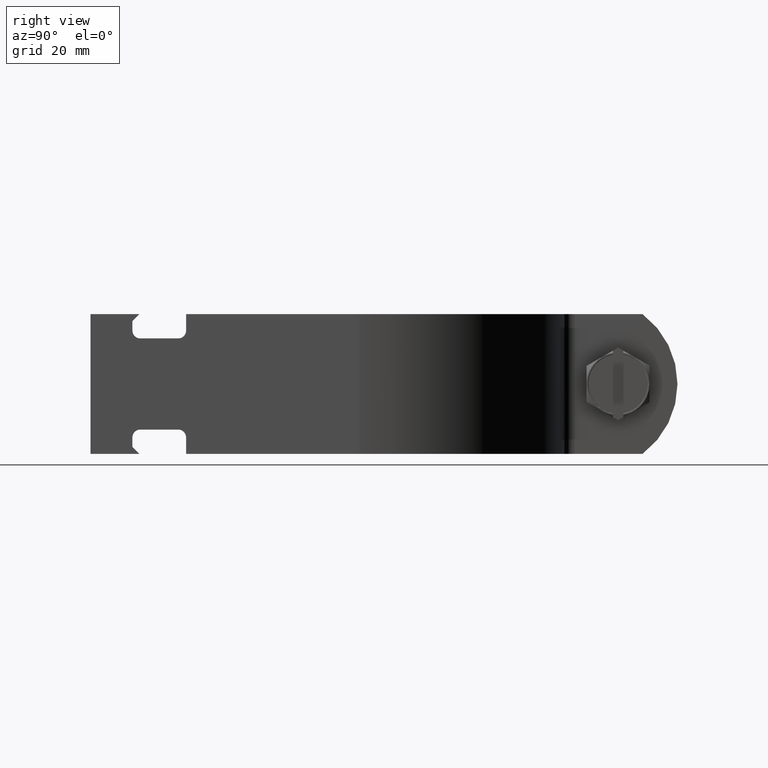
[diagram: clean part render]
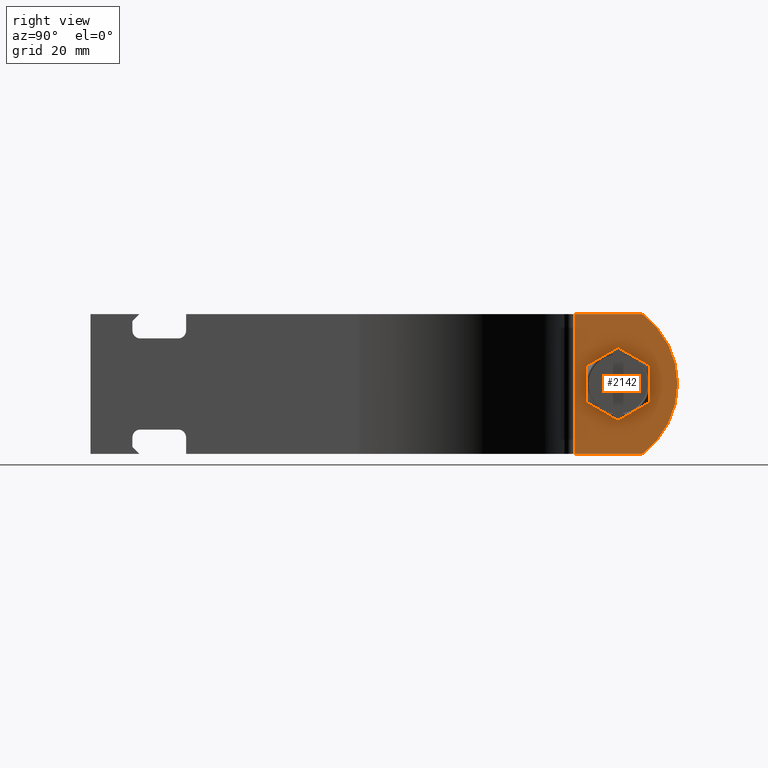
[diagram: same view with one face highlighted and labeled with its STEP entity id]
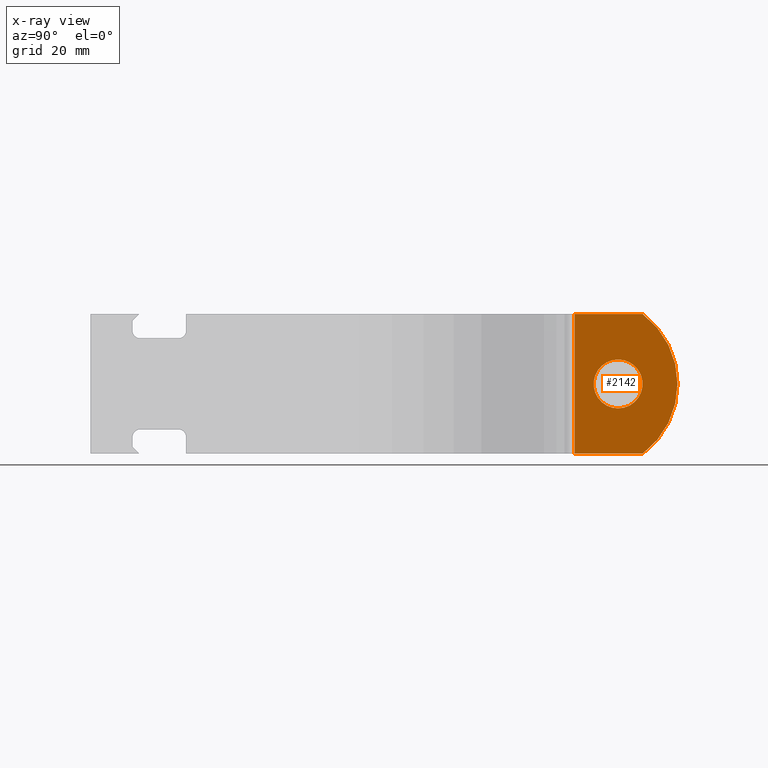
[diagram: x-ray of the same camera — body ghosted, the highlighted face saturated]
A machine part, right view. The second image highlights one B-rep face of the part: STEP entity #2142.
The next image is the same camera in x-ray: the body ghosted, the highlighted face saturated — about 0% of this face is hidden behind the body in this view.
In plain terms, the highlighted planar face has unit normal (-1, 0, 0).
Its self-contained STEP definition (entity closure, byte-faithful):
#33 = EDGE_LOOP ( 'NONE', ( #1793, #1423, #1156, #1931 ) ) ;
#100 = DIRECTION ( 'NONE',  ( -3.122111992759158457E-16, -1.000000000000000000, 0.000000000000000000 ) ) ;
#317 = CARTESIAN_POINT ( 'NONE',  ( 4.999999999999994671, 43.31533469450195639, -15.87500000000000000 ) ) ;
#392 = EDGE_CURVE ( 'NONE', #2931, #1579, #2480, .T. ) ;
#467 = EDGE_CURVE ( 'NONE', #2931, #2383, #2459, .T. ) ;
#469 = DIRECTION ( 'NONE',  ( -1.000000000000000000, 2.375905783659603498E-16, 0.000000000000000000 ) ) ;
#508 = FACE_OUTER_BOUND ( 'NONE', #33, .T. ) ;
#716 = CIRCLE ( 'NONE', #1928, 19.84374999999995737 ) ;
#721 = AXIS2_PLACEMENT_3D ( 'NONE', #1833, #982, #100 ) ;
#819 = ORIENTED_EDGE ( 'NONE', *, *, #2472, .T. ) ;
#914 = CARTESIAN_POINT ( 'NONE',  ( 4.999999999999993783, 41.12040011781588333, 15.87500000000000000 ) ) ;
#982 = DIRECTION ( 'NONE',  ( -1.000000000000000000, 2.375905783659603498E-16, 0.000000000000000000 ) ) ;
#1024 = AXIS2_PLACEMENT_3D ( 'NONE', #1910, #469, #1624 ) ;
#1125 = CARTESIAN_POINT ( 'NONE',  ( 4.999999999999994671, 43.31533469450195639, 15.87500000000000000 ) ) ;
#1156 = ORIENTED_EDGE ( 'NONE', *, *, #1933, .T. ) ;
#1183 = CARTESIAN_POINT ( 'NONE',  ( 4.999999999999997335, 58.73749999999996874, 15.87500000000000355 ) ) ;
#1197 = CIRCLE ( 'NONE', #721, 5.556249999999998579 ) ;
#1287 = CARTESIAN_POINT ( 'NONE',  ( 4.999999999999998224, 58.73749999999996874, -15.87500000000000000 ) ) ;
#1308 = CARTESIAN_POINT ( 'NONE',  ( 4.999999999999997335, 46.83125000000003979, 2.011351856718805931E-15 ) ) ;
#1378 = FACE_BOUND ( 'NONE', #2008, .T. ) ;
#1409 = VERTEX_POINT ( 'NONE', #3740 ) ;
#1423 = ORIENTED_EDGE ( 'NONE', *, *, #392, .T. ) ;
#1575 = CARTESIAN_POINT ( 'NONE',  ( 4.999999999999994671, 43.31533469450195639, -15.87500000000000000 ) ) ;
#1579 = VERTEX_POINT ( 'NONE', #317 ) ;
#1624 = DIRECTION ( 'NONE',  ( -3.122111992759158457E-16, -1.000000000000000000, 0.000000000000000000 ) ) ;
#1729 = VERTEX_POINT ( 'NONE', #3347 ) ;
#1793 = ORIENTED_EDGE ( 'NONE', *, *, #467, .F. ) ;
#1816 = EDGE_CURVE ( 'NONE', #2122, #2383, #716, .T. ) ;
#1833 = CARTESIAN_POINT ( 'NONE',  ( 4.999999999999997335, 53.18124999999997726, -9.720633968232098440E-16 ) ) ;
#1842 = DIRECTION ( 'NONE',  ( 2.375905783659603005E-16, 1.000000000000000000, 0.000000000000000000 ) ) ;
#1886 = VECTOR ( 'NONE', #1842, 1000.000000000000000 ) ;
#1910 = CARTESIAN_POINT ( 'NONE',  ( 4.999999999999997335, 53.18124999999997726, -9.720633968232098440E-16 ) ) ;
#1928 = AXIS2_PLACEMENT_3D ( 'NONE', #1308, #3133, #2496 ) ;
#1931 = ORIENTED_EDGE ( 'NONE', *, *, #1816, .T. ) ;
#1933 = EDGE_CURVE ( 'NONE', #1579, #2122, #3534, .T. ) ;
#1992 = DIRECTION ( 'NONE',  ( 2.375905783659603005E-16, 1.000000000000000000, 0.000000000000000000 ) ) ;
#2008 = EDGE_LOOP ( 'NONE', ( #819, #3410 ) ) ;
#2065 = VECTOR ( 'NONE', #3358, 1000.000000000000000 ) ;
#2122 = VERTEX_POINT ( 'NONE', #1287 ) ;
#2142 = ADVANCED_FACE ( 'NONE', ( #1378, #508 ), #3709, .F. ) ;
#2160 = DIRECTION ( 'NONE',  ( -1.000000000000000000, 2.375905783659603498E-16, 0.000000000000000000 ) ) ;
#2173 = CIRCLE ( 'NONE', #1024, 5.556249999999998579 ) ;
#2237 = EDGE_CURVE ( 'NONE', #1729, #1409, #2173, .T. ) ;
#2280 = CARTESIAN_POINT ( 'NONE',  ( 4.999999999999993783, 41.12040011781588333, -15.87500000000000000 ) ) ;
#2383 = VERTEX_POINT ( 'NONE', #1183 ) ;
#2459 = LINE ( 'NONE', #914, #1886 ) ;
#2472 = EDGE_CURVE ( 'NONE', #1409, #1729, #1197, .T. ) ;
#2480 = LINE ( 'NONE', #1575, #2065 ) ;
#2496 = DIRECTION ( 'NONE',  ( -2.185478394931415259E-16, -1.000000000000000000, 0.000000000000000000 ) ) ;
#2825 = DIRECTION ( 'NONE',  ( -2.375905783659603498E-16, -1.000000000000000000, 0.000000000000000000 ) ) ;
#2931 = VERTEX_POINT ( 'NONE', #1125 ) ;
#3074 = CARTESIAN_POINT ( 'NONE',  ( 4.999999999999993783, 41.12040011781588333, 15.87500000000000000 ) ) ;
#3133 = DIRECTION ( 'NONE',  ( 1.000000000000000000, -2.375905783659603498E-16, -0.000000000000000000 ) ) ;
#3347 = CARTESIAN_POINT ( 'NONE',  ( 4.999999999999997335, 53.18124999999997726, 5.556250000000000355 ) ) ;
#3358 = DIRECTION ( 'NONE',  ( -0.000000000000000000, -0.000000000000000000, -1.000000000000000000 ) ) ;
#3410 = ORIENTED_EDGE ( 'NONE', *, *, #2237, .T. ) ;
#3413 = VECTOR ( 'NONE', #1992, 1000.000000000000000 ) ;
#3534 = LINE ( 'NONE', #2280, #3413 ) ;
#3595 = AXIS2_PLACEMENT_3D ( 'NONE', #3074, #2160, #2825 ) ;
#3709 = PLANE ( 'NONE',  #3595 ) ;
#3740 = CARTESIAN_POINT ( 'NONE',  ( 4.999999999999997335, 53.18124999999997726, -5.556250000000002132 ) ) ;